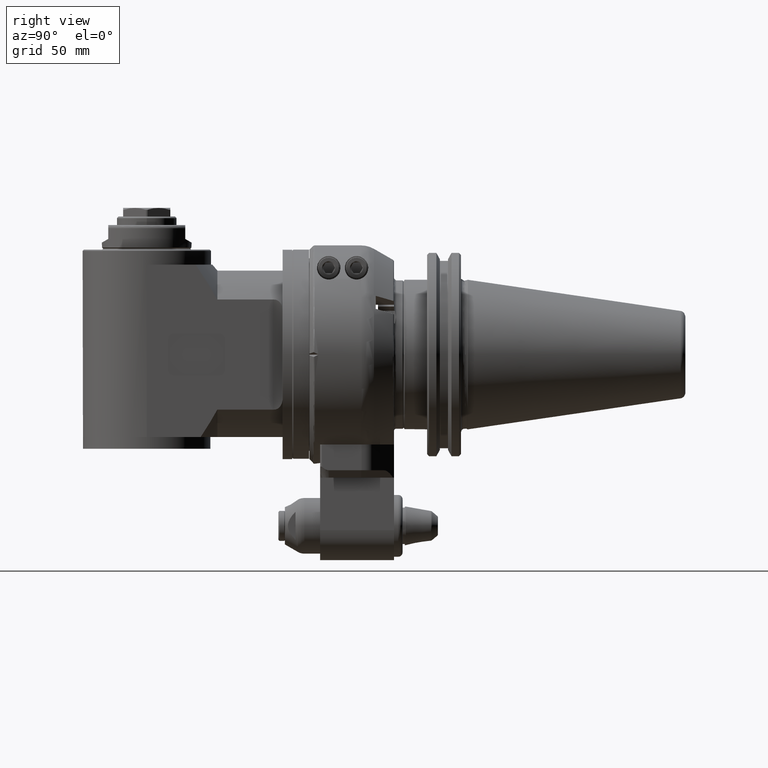
[diagram: clean part render]
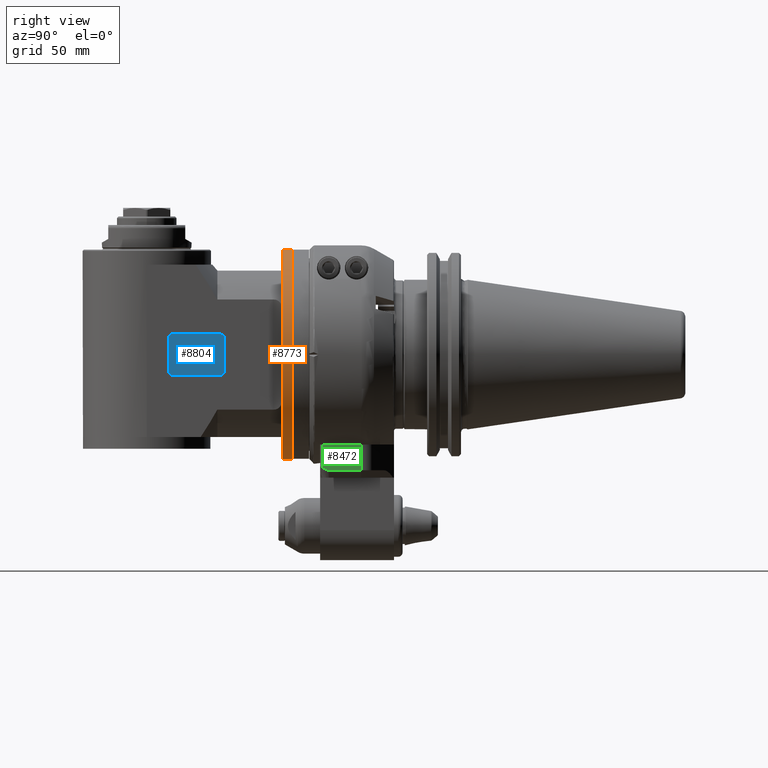
[diagram: same view with three faces highlighted in distinct colors, each labeled with its STEP entity id]
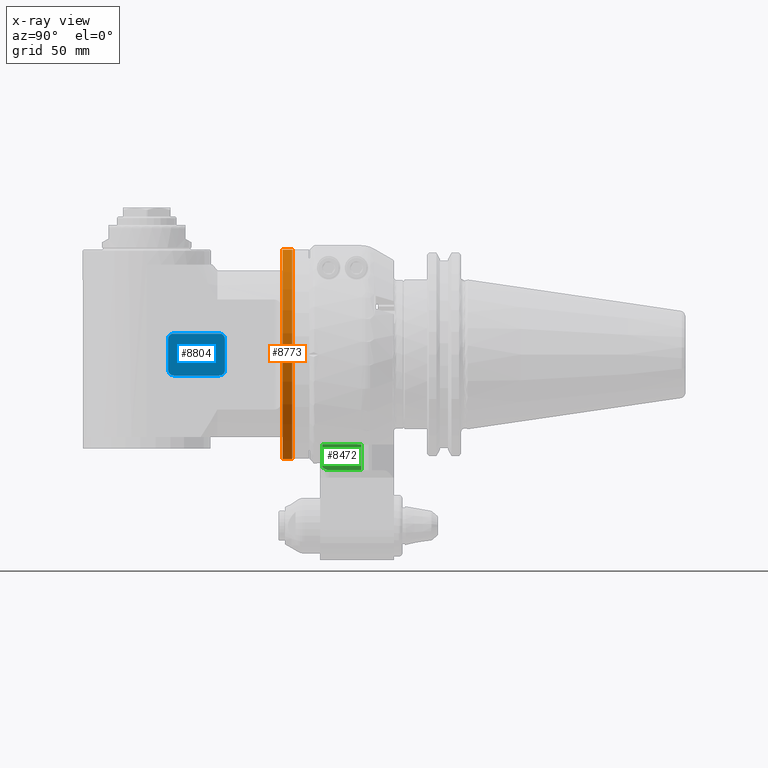
[diagram: x-ray of the same camera — body ghosted, the three highlighted faces saturated]
A machine part, right view with three faces highlighted in distinct colors.
The next image is the same camera in x-ray (body ghosted, the three faces saturated) — at least one of them is partly hidden behind the body in this view.
Their STEP definitions:

[orange] entity #8773 — the highlighted cylindrical surface (bore or boss wall) has radius 49 mm, axis along (0, -1, -0).
#832=LINE('',#17529,#1450);
#1450=VECTOR('',#12257,49.);
#1643=CYLINDRICAL_SURFACE('',#9796,49.);
#2435=FACE_OUTER_BOUND('',#3021,.T.);
#3021=EDGE_LOOP('',(#7927,#7928,#7929,#7930));
#3544=CIRCLE('',#9792,49.);
#3548=CIRCLE('',#9797,49.);
#4345=VERTEX_POINT('',#17516);
#4350=VERTEX_POINT('',#17528);
#5558=EDGE_CURVE('',#4345,#4345,#3544,.T.);
#5564=EDGE_CURVE('',#4345,#4350,#832,.T.);
#5565=EDGE_CURVE('',#4350,#4350,#3548,.T.);
#7927=ORIENTED_EDGE('',*,*,#5558,.F.);
#7928=ORIENTED_EDGE('',*,*,#5564,.T.);
#7929=ORIENTED_EDGE('',*,*,#5565,.F.);
#7930=ORIENTED_EDGE('',*,*,#5564,.F.);
#8773=ADVANCED_FACE('',(#2435),#1643,.T.);
#9792=AXIS2_PLACEMENT_3D('',#17517,#12245,#12246);
#9796=AXIS2_PLACEMENT_3D('',#17527,#12255,#12256);
#9797=AXIS2_PLACEMENT_3D('',#17530,#12258,#12259);
#12245=DIRECTION('center_axis',(0.,-1.,0.));
#12246=DIRECTION('ref_axis',(-0.0871557427476639,0.,0.996194698091745));
#12255=DIRECTION('center_axis',(0.,-1.,0.));
#12256=DIRECTION('ref_axis',(0.0871557427476639,0.,-0.996194698091745));
#12257=DIRECTION('',(0.,1.,0.));
#12258=DIRECTION('center_axis',(0.,1.,0.));
#12259=DIRECTION('ref_axis',(0.0871557427476639,0.,-0.996194698091745));
#17516=CARTESIAN_POINT('',(-15.11058960672,40.5,48.8135402065));
#17517=CARTESIAN_POINT('Origin',(-10.83995821208,40.5,0.));
#17527=CARTESIAN_POINT('Origin',(-10.83995821208,48.9,0.));
#17528=CARTESIAN_POINT('',(-15.11058960672,45.,48.8135402065));
#17529=CARTESIAN_POINT('',(-15.1105896067155,48.9,48.8135402064955));
#17530=CARTESIAN_POINT('Origin',(-10.83995821208,45.,0.));

[blue] entity #8804 — the highlighted planar face has unit normal (1, 0, -0).
#858=LINE('',#17671,#1476);
#861=LINE('',#17682,#1479);
#862=LINE('',#17686,#1480);
#863=LINE('',#17688,#1481);
#1476=VECTOR('',#12371,21.5);
#1479=VECTOR('',#12382,21.5);
#1480=VECTOR('',#12385,14.5);
#1481=VECTOR('',#12388,14.5);
#1978=PLANE('',#9843);
#2466=FACE_OUTER_BOUND('',#3056,.T.);
#3056=EDGE_LOOP('',(#8046,#8047,#8048,#8049,#8050,#8051,#8052,#8053));
#3563=CIRCLE('',#9842,2.5);
#3564=CIRCLE('',#9844,2.5);
#3565=CIRCLE('',#9845,2.5);
#3566=CIRCLE('',#9846,2.5);
#4373=VERTEX_POINT('',#17668);
#4374=VERTEX_POINT('',#17670);
#4375=VERTEX_POINT('',#17674);
#4376=VERTEX_POINT('',#17678);
#4377=VERTEX_POINT('',#17679);
#4378=VERTEX_POINT('',#17681);
#4379=VERTEX_POINT('',#17683);
#4380=VERTEX_POINT('',#17685);
#5609=EDGE_CURVE('',#4374,#4373,#858,.T.);
#5612=EDGE_CURVE('',#4373,#4375,#3563,.T.);
#5613=EDGE_CURVE('',#4376,#4377,#3564,.T.);
#5614=EDGE_CURVE('',#4377,#4378,#861,.T.);
#5615=EDGE_CURVE('',#4378,#4379,#3565,.T.);
#5616=EDGE_CURVE('',#4380,#4379,#862,.T.);
#5617=EDGE_CURVE('',#4380,#4374,#3566,.T.);
#5618=EDGE_CURVE('',#4375,#4376,#863,.T.);
#8046=ORIENTED_EDGE('',*,*,#5613,.T.);
#8047=ORIENTED_EDGE('',*,*,#5614,.T.);
#8048=ORIENTED_EDGE('',*,*,#5615,.T.);
#8049=ORIENTED_EDGE('',*,*,#5616,.F.);
#8050=ORIENTED_EDGE('',*,*,#5617,.T.);
#8051=ORIENTED_EDGE('',*,*,#5609,.T.);
#8052=ORIENTED_EDGE('',*,*,#5612,.T.);
#8053=ORIENTED_EDGE('',*,*,#5618,.T.);
#8804=ADVANCED_FACE('',(#2466),#1978,.T.);
#9842=AXIS2_PLACEMENT_3D('',#17676,#12376,#12377);
#9843=AXIS2_PLACEMENT_3D('',#17677,#12378,#12379);
#9844=AXIS2_PLACEMENT_3D('',#17680,#12380,#12381);
#9845=AXIS2_PLACEMENT_3D('',#17684,#12383,#12384);
#9846=AXIS2_PLACEMENT_3D('',#17687,#12386,#12387);
#12371=DIRECTION('',(0.,1.,0.));
#12376=DIRECTION('center_axis',(0.,0.,-1.));
#12377=DIRECTION('ref_axis',(-1.,0.,0.));
#12378=DIRECTION('center_axis',(0.,0.,-1.));
#12379=DIRECTION('ref_axis',(-0.000561169702482683,-0.99999984254427,0.));
#12380=DIRECTION('center_axis',(0.,0.,-1.));
#12381=DIRECTION('ref_axis',(0.,1.,0.));
#12382=DIRECTION('',(0.,-1.,0.));
#12383=DIRECTION('center_axis',(0.,0.,-1.));
#12384=DIRECTION('ref_axis',(1.,0.,0.));
#12385=DIRECTION('',(1.,0.,0.));
#12386=DIRECTION('center_axis',(0.,0.,-1.));
#12387=DIRECTION('ref_axis',(0.,-1.,0.));
#12388=DIRECTION('',(1.,0.,0.));
#17668=CARTESIAN_POINT('',(-20.58995821208,11.,-29.5));
#17670=CARTESIAN_POINT('',(-20.58995821208,-10.5,-29.5));
#17671=CARTESIAN_POINT('',(-20.58995821208,-10.5,-29.5));
#17674=CARTESIAN_POINT('',(-18.08995821208,13.5,-29.5));
#17676=CARTESIAN_POINT('Origin',(-18.08995821208,11.,-29.5));
#17677=CARTESIAN_POINT('Origin',(-22.40146590572,-10.55405197916,-29.5));
#17678=CARTESIAN_POINT('',(-3.589958212082,13.5,-29.5));
#17679=CARTESIAN_POINT('',(-1.089958212082,11.,-29.5));
#17680=CARTESIAN_POINT('Origin',(-3.589958212082,11.,-29.5));
#17681=CARTESIAN_POINT('',(-1.089958212082,-10.5,-29.5));
#17682=CARTESIAN_POINT('',(-1.089958212082,11.,-29.5));
#17683=CARTESIAN_POINT('',(-3.589958212082,-13.,-29.5));
#17684=CARTESIAN_POINT('Origin',(-3.589958212082,-10.5,-29.5));
#17685=CARTESIAN_POINT('',(-18.08995821208,-13.,-29.5));
#17686=CARTESIAN_POINT('',(-18.08995821208,-13.,-29.5));
#17687=CARTESIAN_POINT('Origin',(-18.08995821208,-10.5,-29.5));
#17688=CARTESIAN_POINT('',(-18.08995821208,13.5,-29.5));

[green] entity #8472 — the highlighted planar face has unit normal (-1, 0, 0).
#100=B_SPLINE_CURVE_WITH_KNOTS('',3,(#15066,#15067,#15068,#15069,#15070,
#15071,#15072,#15073,#15074,#15075,#15076,#15077,#15078,#15079,#15080,#15081,
#15082),.UNSPECIFIED.,.F.,.F.,(4,1,1,1,1,1,1,1,1,1,1,1,1,1,4),(0.,0.07142857142857,
0.1428571428571,0.2142857142857,0.2857142857143,0.3571428571429,0.4285714285714,
0.5,0.5714285714286,0.6428571428571,0.7142857142857,0.7857142857143,0.8571428571429,
0.9285714285714,1.),.UNSPECIFIED.);
#420=LINE('',#14554,#1038);
#473=LINE('',#15032,#1091);
#477=LINE('',#15063,#1095);
#478=LINE('',#15065,#1096);
#1038=VECTOR('',#10539,18.26953855035);
#1091=VECTOR('',#10794,12.03589877858);
#1095=VECTOR('',#10806,15.26953889725);
#1096=VECTOR('',#10807,10.59664825897);
#1803=PLANE('',#9248);
#2134=FACE_OUTER_BOUND('',#2675,.T.);
#2675=EDGE_LOOP('',(#6526,#6527,#6528,#6529,#6530));
#3849=VERTEX_POINT('',#14551);
#3850=VERTEX_POINT('',#14553);
#3922=VERTEX_POINT('',#15027);
#3924=VERTEX_POINT('',#15062);
#3925=VERTEX_POINT('',#15064);
#4768=EDGE_CURVE('',#3850,#3849,#420,.T.);
#4887=EDGE_CURVE('',#3850,#3922,#473,.T.);
#4892=EDGE_CURVE('',#3924,#3922,#477,.T.);
#4893=EDGE_CURVE('',#3925,#3849,#478,.T.);
#4894=EDGE_CURVE('',#3924,#3925,#100,.T.);
#6526=ORIENTED_EDGE('',*,*,#4892,.T.);
#6527=ORIENTED_EDGE('',*,*,#4887,.F.);
#6528=ORIENTED_EDGE('',*,*,#4768,.T.);
#6529=ORIENTED_EDGE('',*,*,#4893,.F.);
#6530=ORIENTED_EDGE('',*,*,#4894,.F.);
#8472=ADVANCED_FACE('',(#2134),#1803,.F.);
#9248=AXIS2_PLACEMENT_3D('',#15061,#10804,#10805);
#10539=DIRECTION('',(0.,-1.,0.));
#10794=DIRECTION('',(2.941657496709E-10,-1.143139752064E-8,-1.));
#10804=DIRECTION('center_axis',(-1.,0.,0.));
#10805=DIRECTION('ref_axis',(0.,0.,-1.));
#10806=DIRECTION('',(2.318712421219E-10,1.,4.016102300856E-10));
#10807=DIRECTION('',(-8.180531394858E-14,-1.385745138844E-12,1.));
#14551=CARTESIAN_POINT('',(29.,6.,-42.));
#14553=CARTESIAN_POINT('',(29.,24.26953855035,-42.));
#14554=CARTESIAN_POINT('',(29.,24.26953855035,-42.));
#15027=CARTESIAN_POINT('',(29.0000000432431,24.2695384127614,-54.0358986870676));
#15032=CARTESIAN_POINT('',(29.,24.26953855035,-42.));
#15061=CARTESIAN_POINT('Origin',(29.,31.,-75.75));
#15062=CARTESIAN_POINT('',(29.,8.999999515516,-54.03589878471));
#15063=CARTESIAN_POINT('',(29.,8.999999515516,-54.03589878471));
#15064=CARTESIAN_POINT('',(29.,6.000000000015,-52.59664825897));
#15065=CARTESIAN_POINT('',(29.,6.000000000015,-52.59664825897));
#15066=CARTESIAN_POINT('Ctrl Pts',(29.,8.999999515516,-54.03589878471));
#15067=CARTESIAN_POINT('Ctrl Pts',(29.,8.93766928965,-54.03589878471));
#15068=CARTESIAN_POINT('Ctrl Pts',(29.,8.812751588892,-54.03185847971));
#15069=CARTESIAN_POINT('Ctrl Pts',(29.,8.624725286982,-54.01357321182));
#15070=CARTESIAN_POINT('Ctrl Pts',(29.,8.435683206974,-53.98295959559));
#15071=CARTESIAN_POINT('Ctrl Pts',(29.,8.244434796208,-53.93965366781));
#15072=CARTESIAN_POINT('Ctrl Pts',(29.,8.049913516718,-53.8830459828));
#15073=CARTESIAN_POINT('Ctrl Pts',(29.,7.852074434357,-53.81272483807));
#15074=CARTESIAN_POINT('Ctrl Pts',(29.,7.649918068956,-53.72793122166));
#15075=CARTESIAN_POINT('Ctrl Pts',(29.,7.441864134709,-53.62737545076));
#15076=CARTESIAN_POINT('Ctrl Pts',(29.,7.227537511476,-53.51014571475));
#15077=CARTESIAN_POINT('Ctrl Pts',(29.,7.005621063458,-53.37476222808));
#15078=CARTESIAN_POINT('Ctrl Pts',(29.,6.77370194145,-53.21869736767));
#15079=CARTESIAN_POINT('Ctrl Pts',(29.,6.530474640701,-53.03977417713));
#15080=CARTESIAN_POINT('Ctrl Pts',(29.,6.274080193104,-52.83521269088));
#15081=CARTESIAN_POINT('Ctrl Pts',(29.,6.092872382958,-52.67940987755));
#15082=CARTESIAN_POINT('Ctrl Pts',(29.,6.000000000015,-52.59664825897));